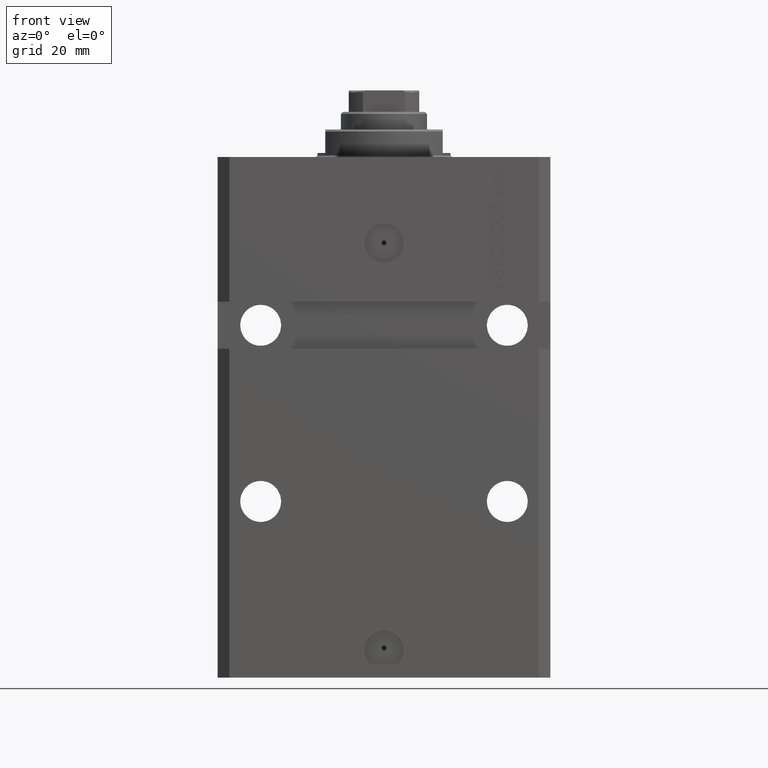
[diagram: clean part render]
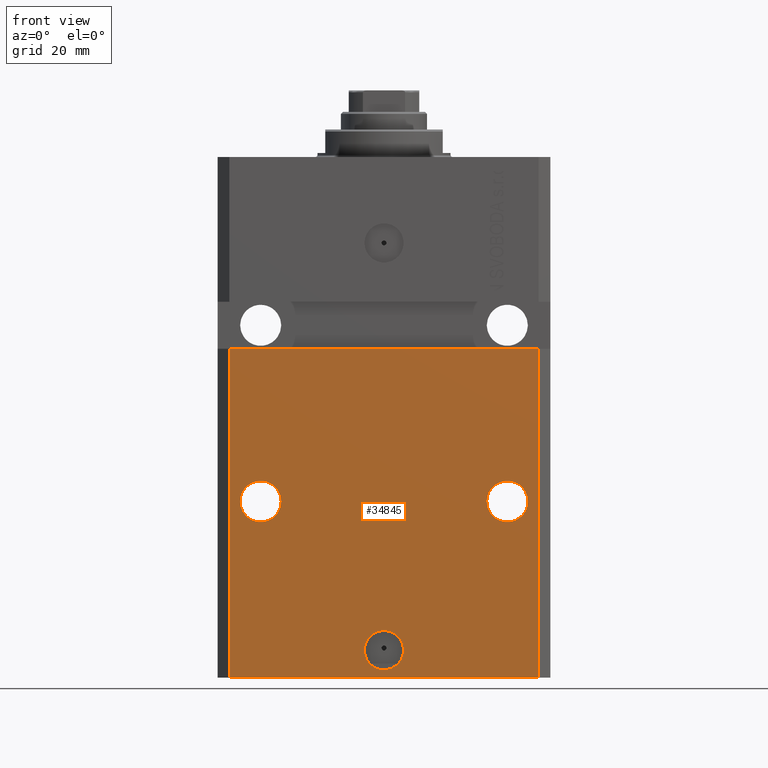
[diagram: same view with one face highlighted and labeled with its STEP entity id]
A machine part, front view. The second image highlights one B-rep face of the part: STEP entity #34845.
In plain terms, the highlighted planar face has unit normal (0, -1, 0).
Its self-contained STEP definition (entity closure, byte-faithful):
#65 = ORIENTED_EDGE ( 'NONE', *, *, #9501, .T. ) ;
#202 = EDGE_CURVE ( 'NONE', #2006, #42528, #11671, .T. ) ;
#2006 = VERTEX_POINT ( 'NONE', #14466 ) ;
#2052 = VERTEX_POINT ( 'NONE', #41514 ) ;
#2953 = CIRCLE ( 'NONE', #20282, 5.249999999999997335 ) ;
#3414 = ORIENTED_EDGE ( 'NONE', *, *, #18679, .F. ) ;
#3685 = EDGE_LOOP ( 'NONE', ( #37304, #3414 ) ) ;
#5179 = CARTESIAN_POINT ( 'NONE',  ( 31.50000000000001421, -31.49999999999999289, -88.00000000000000000 ) ) ;
#6850 = DIRECTION ( 'NONE',  ( 1.176083712526788232E-16, -1.000000000000000000, 0.000000000000000000 ) ) ;
#7246 = FACE_BOUND ( 'NONE', #33936, .T. ) ;
#7480 = VECTOR ( 'NONE', #20021, 1000.000000000000000 ) ;
#7529 = CARTESIAN_POINT ( 'NONE',  ( -31.50000000000001421, -31.50000000000000711, -88.00000000000000000 ) ) ;
#8827 = CIRCLE ( 'NONE', #40310, 5.249999999999997335 ) ;
#9501 = EDGE_CURVE ( 'NONE', #2006, #2052, #41933, .T. ) ;
#10047 = ORIENTED_EDGE ( 'NONE', *, *, #37782, .F. ) ;
#10525 = CARTESIAN_POINT ( 'NONE',  ( 0.000000000000000000, -31.50000000000000000, -126.0000000000000000 ) ) ;
#10623 = DIRECTION ( 'NONE',  ( 0.000000000000000000, 0.000000000000000000, 1.000000000000000000 ) ) ;
#10924 = FACE_BOUND ( 'NONE', #13993, .T. ) ;
#11363 = EDGE_CURVE ( 'NONE', #28614, #38817, #2953, .T. ) ;
#11671 = LINE ( 'NONE', #46099, #7480 ) ;
#11869 = DIRECTION ( 'NONE',  ( 1.000000000000000000, 0.000000000000000000, 0.000000000000000000 ) ) ;
#12202 = EDGE_CURVE ( 'NONE', #33623, #47660, #47135, .T. ) ;
#12360 = CARTESIAN_POINT ( 'NONE',  ( -42.50000000000000000, -31.50000000000000711, -48.99999999999999289 ) ) ;
#12666 = EDGE_CURVE ( 'NONE', #2052, #37610, #14315, .T. ) ;
#12721 = CARTESIAN_POINT ( 'NONE',  ( 5.000000000000006217, -31.50000000000000000, -126.0000000000000000 ) ) ;
#13993 = EDGE_LOOP ( 'NONE', ( #24505, #23970 ) ) ;
#14315 = LINE ( 'NONE', #25864, #38439 ) ;
#14466 = CARTESIAN_POINT ( 'NONE',  ( -39.50000000000000711, -31.50000000000000000, -133.0000000000000000 ) ) ;
#14865 = PLANE ( 'NONE',  #36251 ) ;
#14898 = AXIS2_PLACEMENT_3D ( 'NONE', #23070, #34639, #33907 ) ;
#15560 = CARTESIAN_POINT ( 'NONE',  ( 31.50000000000001421, -31.49999999999999289, -88.00000000000000000 ) ) ;
#15956 = AXIS2_PLACEMENT_3D ( 'NONE', #10525, #6850, #45795 ) ;
#18558 = AXIS2_PLACEMENT_3D ( 'NONE', #27187, #23265, #35316 ) ;
#18679 = EDGE_CURVE ( 'NONE', #38817, #28614, #20904, .T. ) ;
#19287 = VERTEX_POINT ( 'NONE', #12721 ) ;
#19740 = DIRECTION ( 'NONE',  ( 1.176083712526788232E-16, -1.000000000000000000, 0.000000000000000000 ) ) ;
#20021 = DIRECTION ( 'NONE',  ( 0.000000000000000000, 0.000000000000000000, 1.000000000000000000 ) ) ;
#20056 = CARTESIAN_POINT ( 'NONE',  ( -39.50000000000000711, -31.50000000000000000, -133.0000000000000000 ) ) ;
#20282 = AXIS2_PLACEMENT_3D ( 'NONE', #5179, #35656, #24824 ) ;
#20904 = CIRCLE ( 'NONE', #38936, 5.249999999999997335 ) ;
#20977 = VECTOR ( 'NONE', #34572, 1000.000000000000000 ) ;
#21249 = CARTESIAN_POINT ( 'NONE',  ( 26.25000000000001776, -31.49999999999999289, -88.00000000000000000 ) ) ;
#22510 = DIRECTION ( 'NONE',  ( 1.176083712526788232E-16, -1.000000000000000000, 0.000000000000000000 ) ) ;
#22955 = EDGE_CURVE ( 'NONE', #42528, #37610, #27098, .T. ) ;
#23070 = CARTESIAN_POINT ( 'NONE',  ( -31.50000000000001421, -31.50000000000000711, -88.00000000000000000 ) ) ;
#23265 = DIRECTION ( 'NONE',  ( 1.176083712526788232E-16, -1.000000000000000000, 0.000000000000000000 ) ) ;
#23970 = ORIENTED_EDGE ( 'NONE', *, *, #38624, .F. ) ;
#24505 = ORIENTED_EDGE ( 'NONE', *, *, #12202, .F. ) ;
#24824 = DIRECTION ( 'NONE',  ( 1.000000000000000000, 0.000000000000000000, 0.000000000000000000 ) ) ;
#25295 = ORIENTED_EDGE ( 'NONE', *, *, #41958, .F. ) ;
#25864 = CARTESIAN_POINT ( 'NONE',  ( 39.50000000000000711, -31.50000000000000000, -133.0000000000000000 ) ) ;
#27098 = LINE ( 'NONE', #12360, #27347 ) ;
#27187 = CARTESIAN_POINT ( 'NONE',  ( 0.000000000000000000, -31.50000000000000000, -126.0000000000000000 ) ) ;
#27347 = VECTOR ( 'NONE', #30795, 1000.000000000000000 ) ;
#28614 = VERTEX_POINT ( 'NONE', #41708 ) ;
#29850 = CARTESIAN_POINT ( 'NONE',  ( -39.50000000000000711, -31.50000000000000000, -133.0000000000000000 ) ) ;
#30795 = DIRECTION ( 'NONE',  ( 1.000000000000000000, 1.632680918566406300E-16, 1.632680918566406300E-16 ) ) ;
#31197 = EDGE_LOOP ( 'NONE', ( #43322, #35095, #65, #33410 ) ) ;
#33410 = ORIENTED_EDGE ( 'NONE', *, *, #12666, .T. ) ;
#33623 = VERTEX_POINT ( 'NONE', #37984 ) ;
#33907 = DIRECTION ( 'NONE',  ( -1.000000000000000000, 0.000000000000000000, 0.000000000000000000 ) ) ;
#33936 = EDGE_LOOP ( 'NONE', ( #25295, #10047 ) ) ;
#34572 = DIRECTION ( 'NONE',  ( 1.000000000000000000, 0.000000000000000000, 0.000000000000000000 ) ) ;
#34639 = DIRECTION ( 'NONE',  ( 1.176083712526788232E-16, -1.000000000000000000, 0.000000000000000000 ) ) ;
#34845 = ADVANCED_FACE ( 'NONE', ( #7246, #44616, #10924, #41157 ), #14865, .T. ) ;
#35095 = ORIENTED_EDGE ( 'NONE', *, *, #202, .F. ) ;
#35169 = VERTEX_POINT ( 'NONE', #48603 ) ;
#35203 = CARTESIAN_POINT ( 'NONE',  ( -36.75000000000001421, -31.50000000000000711, -88.00000000000000000 ) ) ;
#35316 = DIRECTION ( 'NONE',  ( 1.000000000000000000, 0.000000000000000000, 0.000000000000000000 ) ) ;
#35656 = DIRECTION ( 'NONE',  ( 1.176083712526788232E-16, -1.000000000000000000, 0.000000000000000000 ) ) ;
#36251 = AXIS2_PLACEMENT_3D ( 'NONE', #29850, #44856, #37467 ) ;
#37304 = ORIENTED_EDGE ( 'NONE', *, *, #11363, .F. ) ;
#37467 = DIRECTION ( 'NONE',  ( 0.000000000000000000, -0.000000000000000000, -1.000000000000000000 ) ) ;
#37610 = VERTEX_POINT ( 'NONE', #39642 ) ;
#37782 = EDGE_CURVE ( 'NONE', #35169, #19287, #43455, .T. ) ;
#37984 = CARTESIAN_POINT ( 'NONE',  ( -26.25000000000001776, -31.50000000000000711, -88.00000000000000000 ) ) ;
#38439 = VECTOR ( 'NONE', #10623, 1000.000000000000000 ) ;
#38624 = EDGE_CURVE ( 'NONE', #47660, #33623, #8827, .T. ) ;
#38817 = VERTEX_POINT ( 'NONE', #21249 ) ;
#38936 = AXIS2_PLACEMENT_3D ( 'NONE', #15560, #19740, #11869 ) ;
#39056 = CARTESIAN_POINT ( 'NONE',  ( -39.50000000000000000, -31.50000000000000711, -48.99999999999999289 ) ) ;
#39642 = CARTESIAN_POINT ( 'NONE',  ( 39.50000000000001421, -31.49999999999999289, -48.99999999999997868 ) ) ;
#40310 = AXIS2_PLACEMENT_3D ( 'NONE', #7529, #22510, #41449 ) ;
#41157 = FACE_OUTER_BOUND ( 'NONE', #31197, .T. ) ;
#41449 = DIRECTION ( 'NONE',  ( -1.000000000000000000, 0.000000000000000000, 0.000000000000000000 ) ) ;
#41514 = CARTESIAN_POINT ( 'NONE',  ( 39.50000000000000711, -31.50000000000000000, -133.0000000000000000 ) ) ;
#41708 = CARTESIAN_POINT ( 'NONE',  ( 36.75000000000001421, -31.49999999999999289, -88.00000000000000000 ) ) ;
#41933 = LINE ( 'NONE', #20056, #20977 ) ;
#41958 = EDGE_CURVE ( 'NONE', #19287, #35169, #45260, .T. ) ;
#42528 = VERTEX_POINT ( 'NONE', #39056 ) ;
#43322 = ORIENTED_EDGE ( 'NONE', *, *, #22955, .F. ) ;
#43455 = CIRCLE ( 'NONE', #15956, 5.000000000000006217 ) ;
#44616 = FACE_BOUND ( 'NONE', #3685, .T. ) ;
#44856 = DIRECTION ( 'NONE',  ( 0.000000000000000000, -1.000000000000000000, 0.000000000000000000 ) ) ;
#45260 = CIRCLE ( 'NONE', #18558, 5.000000000000006217 ) ;
#45795 = DIRECTION ( 'NONE',  ( 1.000000000000000000, 0.000000000000000000, 0.000000000000000000 ) ) ;
#46099 = CARTESIAN_POINT ( 'NONE',  ( -39.50000000000000711, -31.50000000000000000, -133.0000000000000000 ) ) ;
#47135 = CIRCLE ( 'NONE', #14898, 5.249999999999997335 ) ;
#47660 = VERTEX_POINT ( 'NONE', #35203 ) ;
#48603 = CARTESIAN_POINT ( 'NONE',  ( -5.000000000000006217, -31.50000000000000000, -126.0000000000000000 ) ) ;